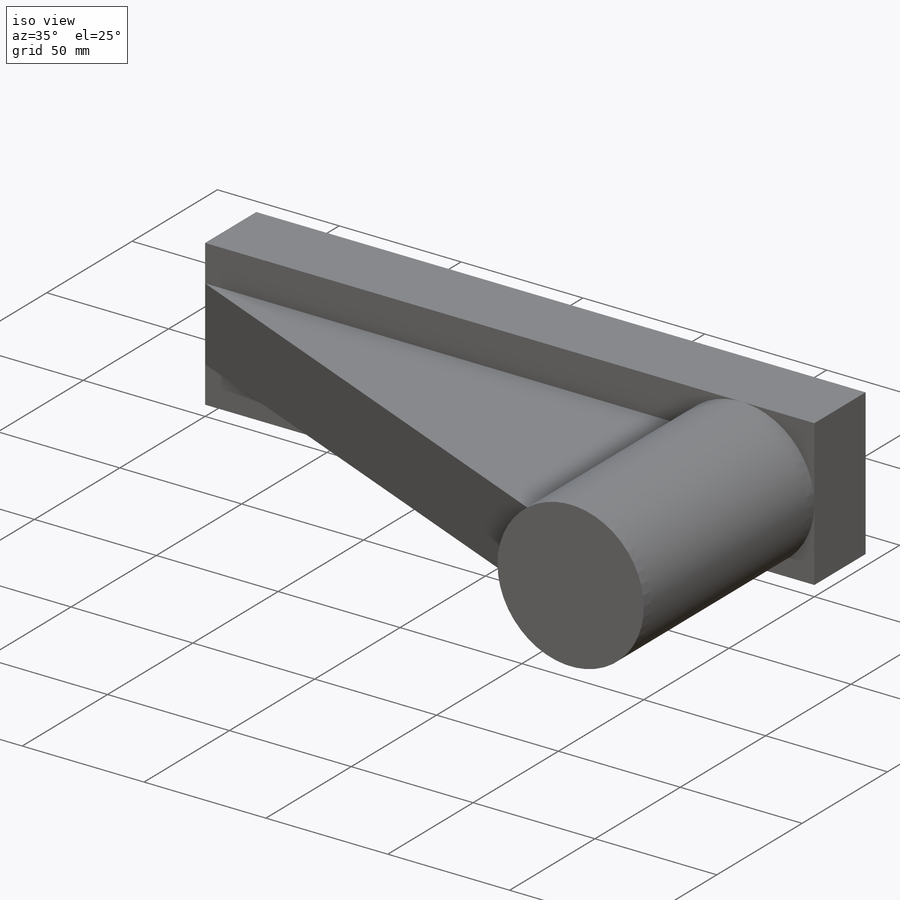
[diagram: iso view]
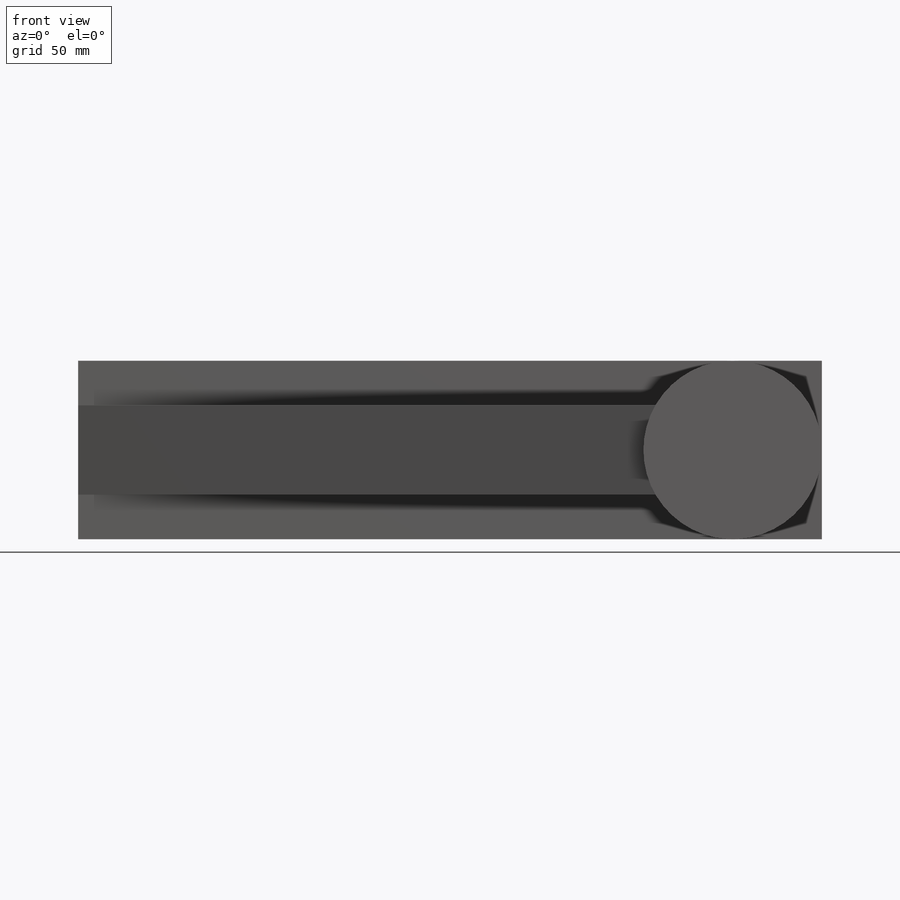
[diagram: front view]
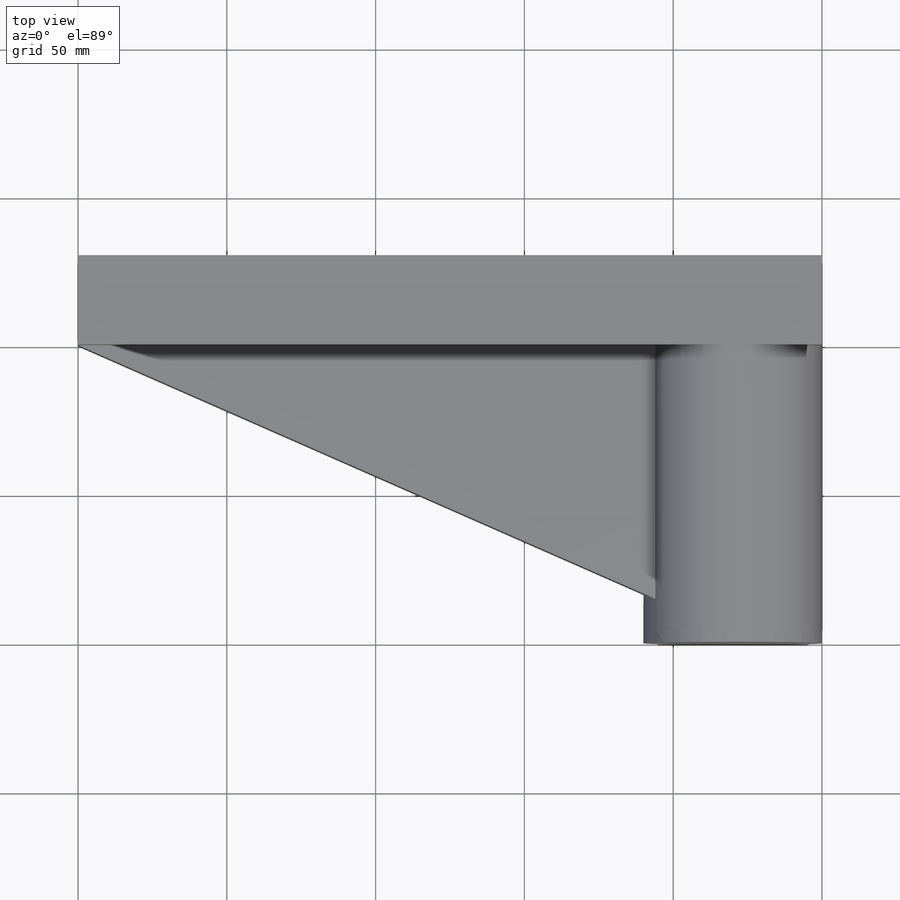
[diagram: top view]
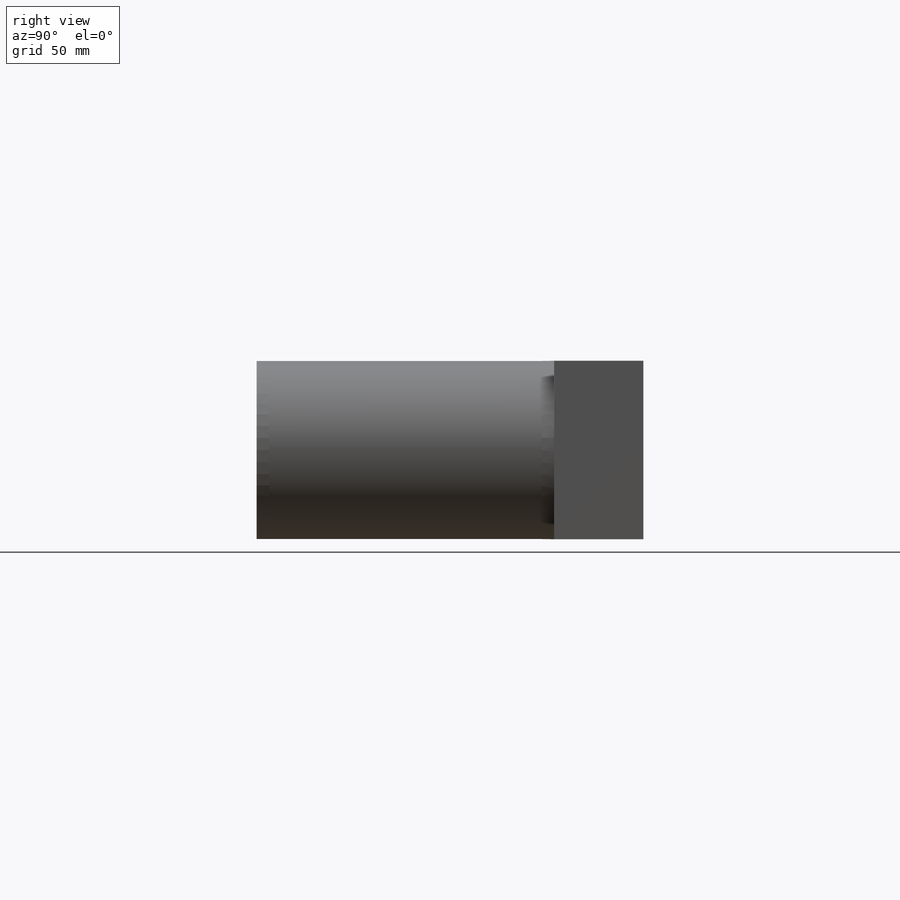
[diagram: right view]
SOLIDWORKS PART (.sldprt)
format: sldprt  version: not decoded by parser v0  size: 214,528 bytes
history: native  units: mm
features: sketch x4, plane x3, extrude x2, material x1, surface_op x1 (+12 scaffold rows collapsed)
feature tree (23):
  scaffold x12  (default folders/planes/origin — collapsed)
  material  "7075-T6, Plate (SS)"
  plane  "Ebene vorne"
  plane  "Ebene oben"
  plane  "Ebene rechts"
  sketch  "Skizze1"  dims[D1=60.0mm D2=250.0mm]
  extrude  "Linear austragen1"  Depth=30mm
  extrude  "Linear austragen2"  [1 undecoded]
  sketch  "Skizze1<3>"  dims[D1=100.0mm]
  sketch  "Skizze2"  dims[D1=83.5mm]
  surface_op  "Oberfläche-Linear austragen1"
  sketch  "Skizze3"  dims[D1=200.0mm D5=30.0mm D6=5.0mm D7=5.0mm]
decode coverage: 5 of 7 modeling features carry decoded parameters
note: 1 parameter value undecoded
note: suppression state not decoded; provenance and decode notes live in map.json
